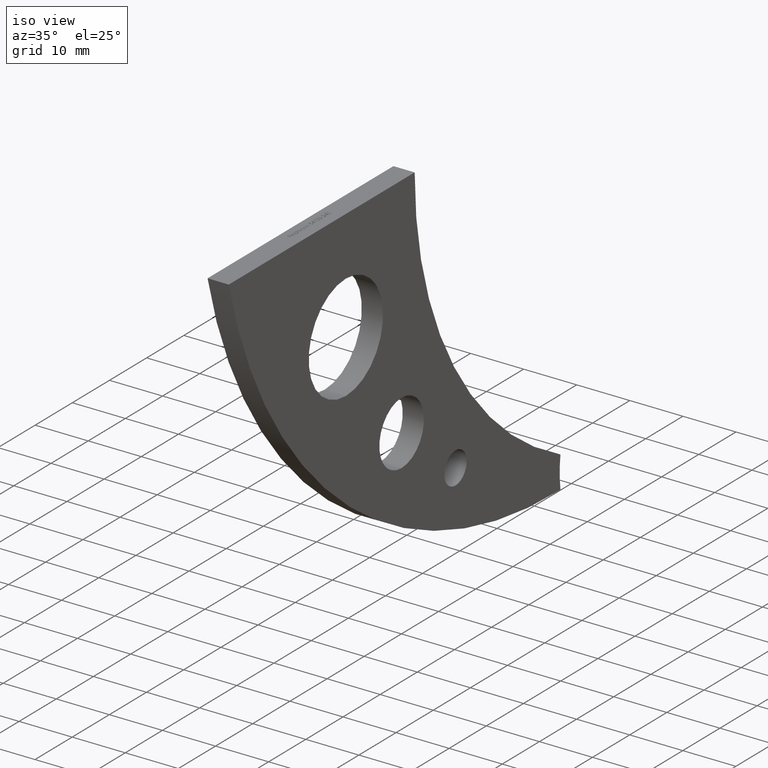
[diagram: clean part render]
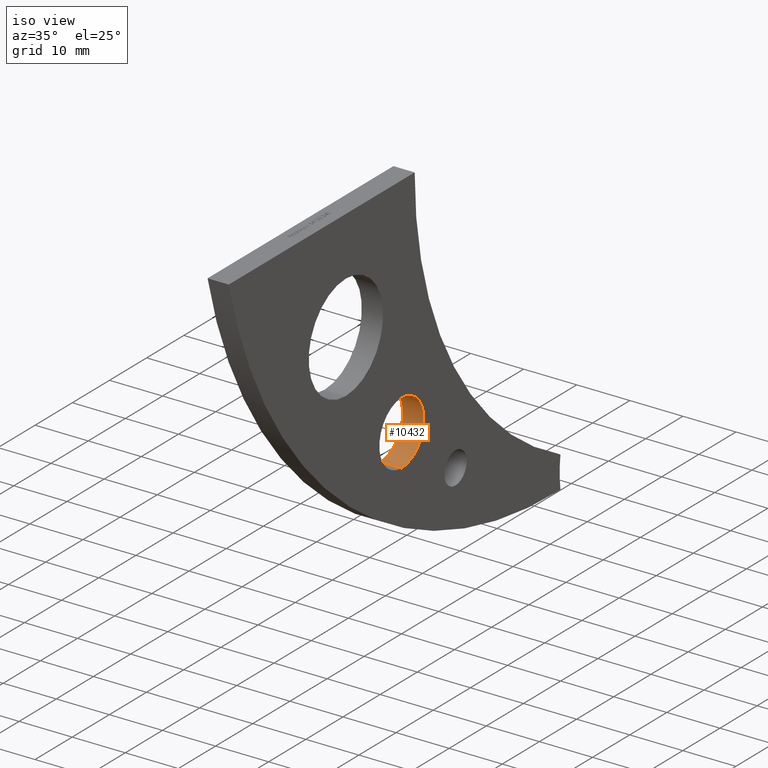
[diagram: same view with one face highlighted and labeled with its STEP entity id]
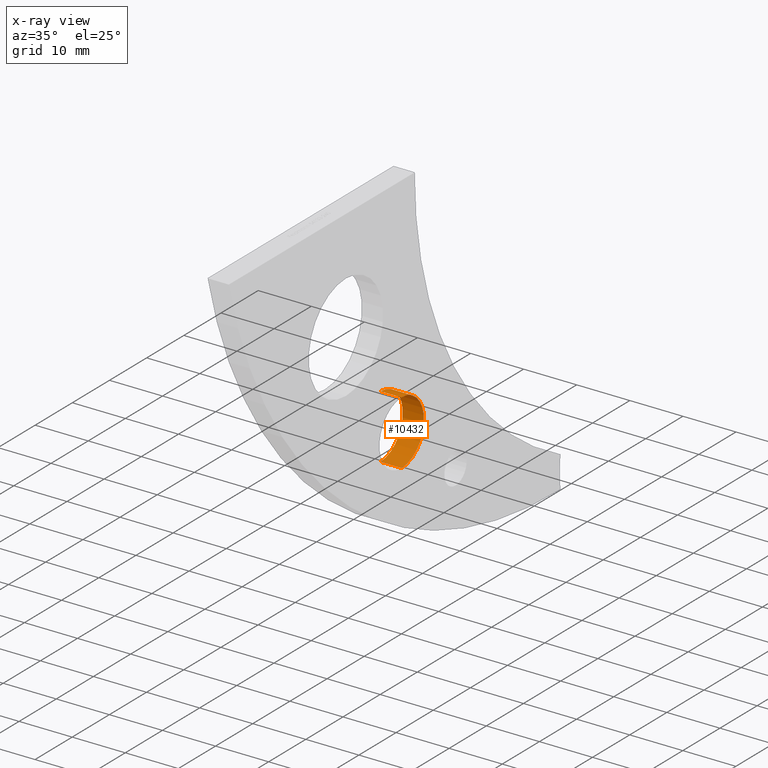
[diagram: x-ray of the same camera — body ghosted, the highlighted face saturated]
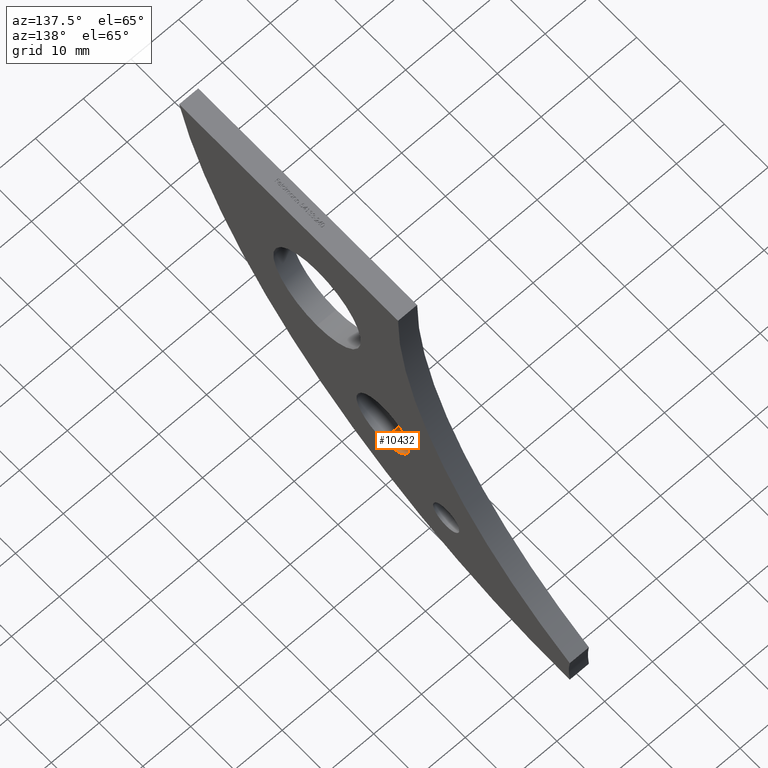
[diagram: same view with one face highlighted and labeled with its STEP entity id]
A machine part, iso view. The second image highlights one B-rep face of the part: STEP entity #10432.
The next image is the same camera in x-ray: the body ghosted, the highlighted face saturated — about 0% of this face is hidden behind the body in this view.
A second angle (auxiliary view) of the same face is appended — the face is thin or edge-on in the first view.
In plain terms, the highlighted cylindrical surface (partial cylindrical patch) has radius 6 mm, axis along (-1, -0, -0).
Its self-contained STEP definition (entity closure, byte-faithful):
#256 = VERTEX_POINT ( 'NONE', #6141 ) ;
#568 = CARTESIAN_POINT ( 'NONE',  ( 2.000000000000000000, 21.50000000000000000, -36.99999999999997868 ) ) ;
#774 = DIRECTION ( 'NONE',  ( 0.000000000000000000, 0.000000000000000000, 1.000000000000000000 ) ) ;
#812 = EDGE_LOOP ( 'NONE', ( #1054, #11012, #7377, #4085 ) ) ;
#1054 = ORIENTED_EDGE ( 'NONE', *, *, #4041, .F. ) ;
#1055 = DIRECTION ( 'NONE',  ( 1.000000000000000000, 0.000000000000000000, 0.000000000000000000 ) ) ;
#1286 = CARTESIAN_POINT ( 'NONE',  ( 2.000000000000000000, 21.50000000000000000, -49.00000000000001421 ) ) ;
#1366 = LINE ( 'NONE', #1286, #11581 ) ;
#1545 = DIRECTION ( 'NONE',  ( -1.000000000000000000, -0.000000000000000000, -0.000000000000000000 ) ) ;
#1547 = CARTESIAN_POINT ( 'NONE',  ( 2.000000000000000000, 21.50000000000000000, -49.00000000000001421 ) ) ;
#2683 = AXIS2_PLACEMENT_3D ( 'NONE', #9348, #3418, #8484 ) ;
#2712 = CARTESIAN_POINT ( 'NONE',  ( 2.000000000000000000, 21.50000000000000000, -43.00000000000000000 ) ) ;
#3418 = DIRECTION ( 'NONE',  ( 1.000000000000000000, 0.000000000000000000, 0.000000000000000000 ) ) ;
#3512 = VECTOR ( 'NONE', #1545, 1000.000000000000000 ) ;
#4041 = EDGE_CURVE ( 'NONE', #10054, #6115, #1366, .T. ) ;
#4085 = ORIENTED_EDGE ( 'NONE', *, *, #9833, .F. ) ;
#4164 = AXIS2_PLACEMENT_3D ( 'NONE', #2712, #5637, #774 ) ;
#5102 = VERTEX_POINT ( 'NONE', #9486 ) ;
#5637 = DIRECTION ( 'NONE',  ( -1.000000000000000000, -0.000000000000000000, -0.000000000000000000 ) ) ;
#6115 = VERTEX_POINT ( 'NONE', #6132 ) ;
#6132 = CARTESIAN_POINT ( 'NONE',  ( -2.000000000000000000, 21.50000000000000000, -49.00000000000001421 ) ) ;
#6141 = CARTESIAN_POINT ( 'NONE',  ( 2.000000000000000000, 21.50000000000000000, -36.99999999999997868 ) ) ;
#6505 = EDGE_CURVE ( 'NONE', #10054, #256, #12434, .T. ) ;
#7377 = ORIENTED_EDGE ( 'NONE', *, *, #8434, .T. ) ;
#7504 = CIRCLE ( 'NONE', #11421, 6.000000000000019540 ) ;
#7870 = CARTESIAN_POINT ( 'NONE',  ( -2.000000000000000000, 21.50000000000000000, -43.00000000000000000 ) ) ;
#7912 = DIRECTION ( 'NONE',  ( 0.000000000000000000, 0.000000000000000000, -1.000000000000000000 ) ) ;
#8434 = EDGE_CURVE ( 'NONE', #256, #5102, #10923, .T. ) ;
#8484 = DIRECTION ( 'NONE',  ( 0.000000000000000000, 0.000000000000000000, -1.000000000000000000 ) ) ;
#9348 = CARTESIAN_POINT ( 'NONE',  ( 2.000000000000000000, 21.50000000000000000, -43.00000000000000000 ) ) ;
#9486 = CARTESIAN_POINT ( 'NONE',  ( -2.000000000000000000, 21.50000000000000000, -36.99999999999997868 ) ) ;
#9833 = EDGE_CURVE ( 'NONE', #6115, #5102, #7504, .T. ) ;
#10054 = VERTEX_POINT ( 'NONE', #1547 ) ;
#10188 = CYLINDRICAL_SURFACE ( 'NONE', #4164, 6.000000000000019540 ) ;
#10202 = DIRECTION ( 'NONE',  ( -1.000000000000000000, -0.000000000000000000, -0.000000000000000000 ) ) ;
#10432 = ADVANCED_FACE ( 'NONE', ( #12185 ), #10188, .F. ) ;
#10923 = LINE ( 'NONE', #568, #3512 ) ;
#11012 = ORIENTED_EDGE ( 'NONE', *, *, #6505, .T. ) ;
#11421 = AXIS2_PLACEMENT_3D ( 'NONE', #7870, #1055, #7912 ) ;
#11581 = VECTOR ( 'NONE', #10202, 1000.000000000000000 ) ;
#12185 = FACE_OUTER_BOUND ( 'NONE', #812, .T. ) ;
#12434 = CIRCLE ( 'NONE', #2683, 6.000000000000019540 ) ;